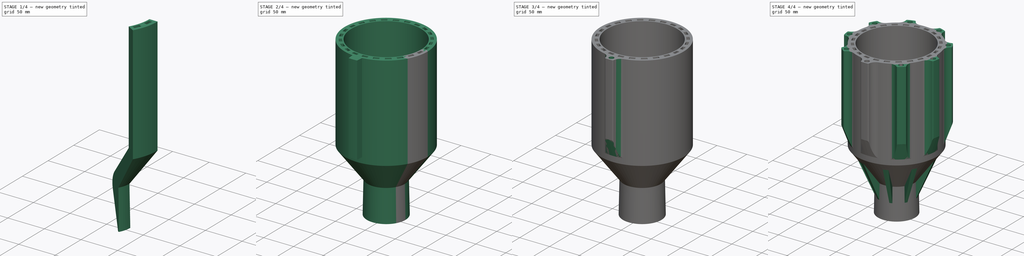
[diagram: build sequence overview — one tinted view per stage of 4, left to right]
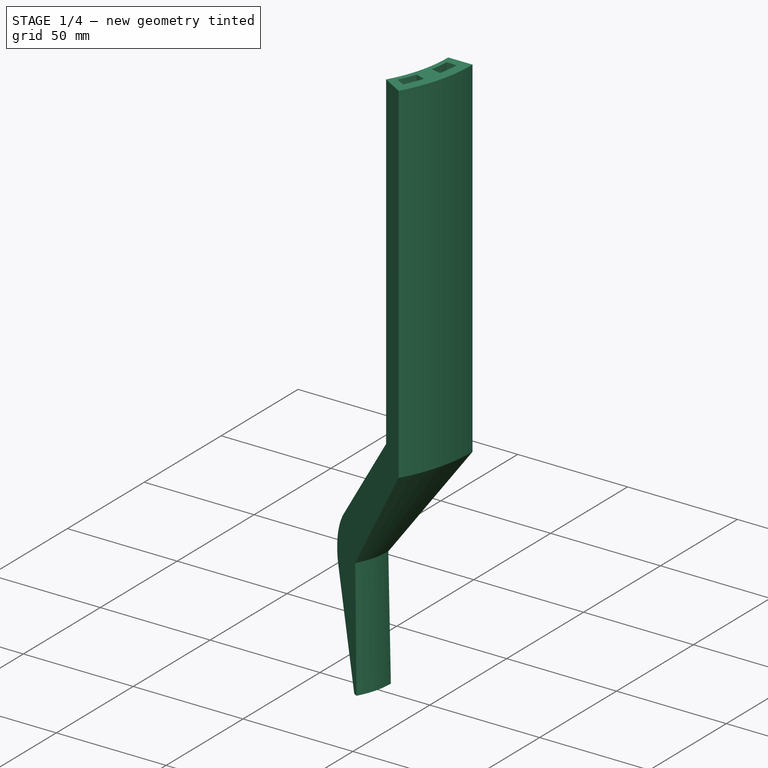
[diagram: stage 1 of 4 — iso view after this stage's code; geometry added in this stage tinted green]
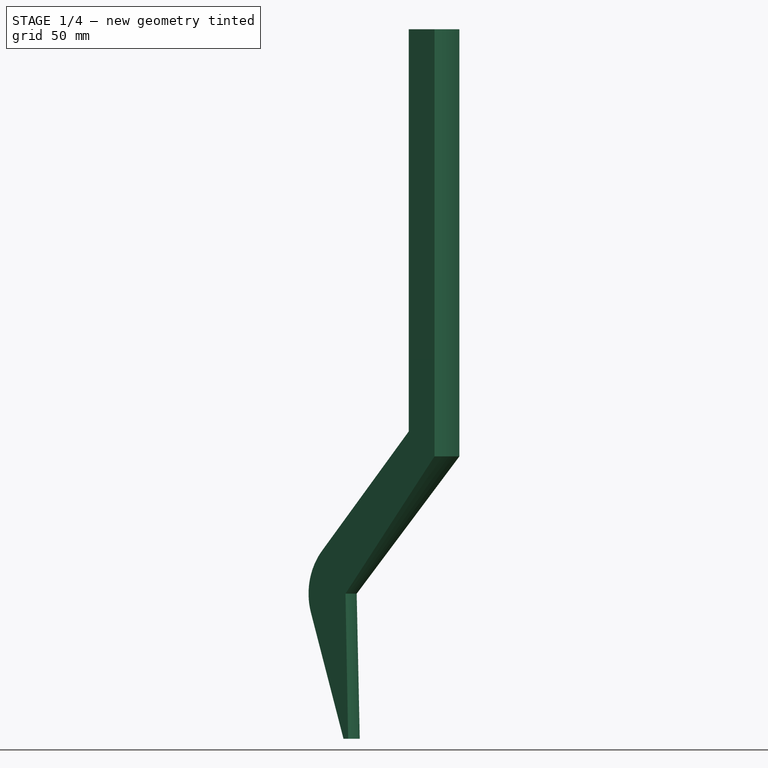
[diagram: stage 1 of 4 — front view after this stage's code; geometry added in this stage tinted green]
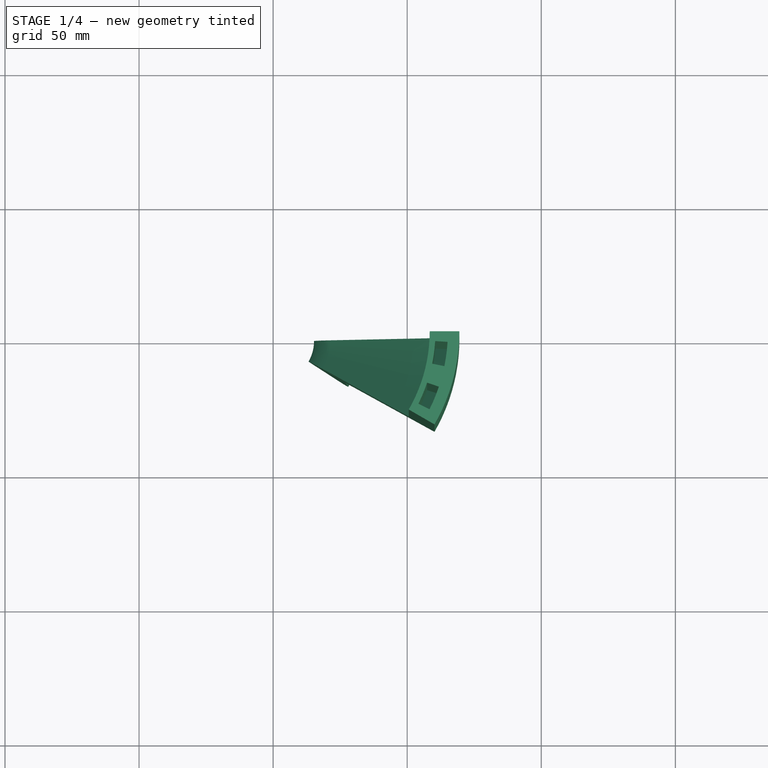
[diagram: stage 1 of 4 — top view after this stage's code; geometry added in this stage tinted green]
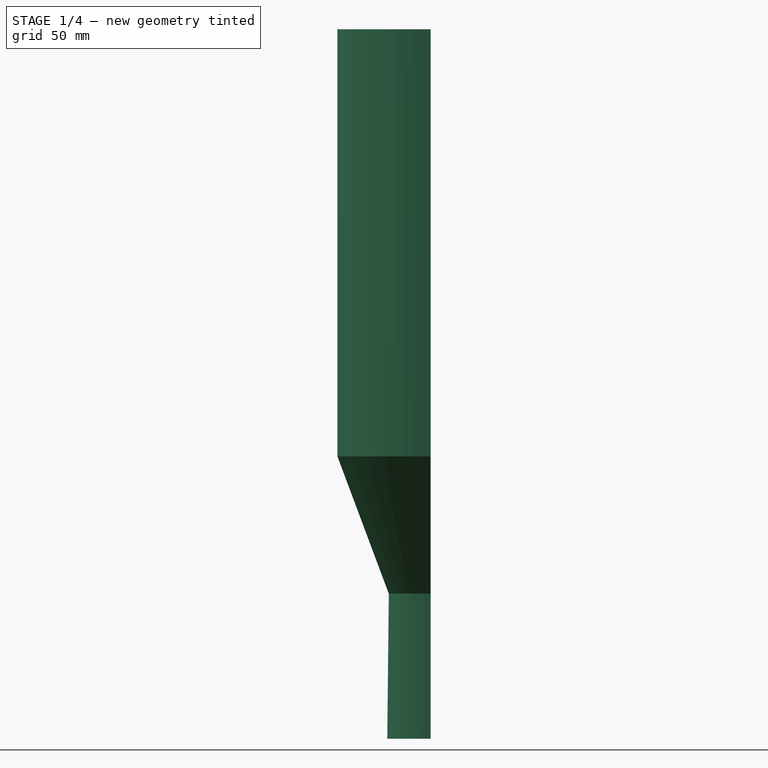
[diagram: stage 1 of 4 — right view after this stage's code; geometry added in this stage tinted green]
FCSTD DOCUMENT  (FreeCAD 1.0R39109 (Git))
Label: mlaznica3DPrint
License: All rights reserved
LicenseURL: https://en.wikipedia.org/wiki/All_rights_reserved
objects: Sketcher::SketchObject×8, PartDesign::Groove×4, PartDesign::PolarPattern×3, PartDesign::Revolution×2, PartDesign::Plane×2, PartDesign::Fillet×2, Spreadsheet::Sheet×1, PartDesign::Pad×1, PartDesign::Pocket×1, PartDesign::Body×1
note: 55 computed .brp shape members not serialized (recipe doc carries the construction recipe); baked Part::Feature solids carry a one-line shape summary decoded from their .brp

FEATURE [Sketcher::SketchObject] Sketch
  ArcFitTolerance = 1e-06
  AttachmentSupport = -> [XZ_Plane]
  FullyConstrained = true
  MakeInternals = false
  MapMode = 5
  Placement = pos=(0,0,0) rot=(1,0,0;1.5708rad)
  expr: Constraints[18] = Spreadsheet.vanjski_promjer
  expr: Constraints[1] = Spreadsheet.promjer_grla_mlaznice
  expr: Constraints[22] = Spreadsheet.vanjski_promjer_grlo
  expr: Constraints[6] = Spreadsheet.unutarnji_promjer_komora
  sketch-geometry (10):
    g0: ArcOfCircle CenterX=40.2564 CenterY=54.12 CenterZ=0 NormalX=0 NormalY=0 NormalZ=1 AngleXU=0 Radius=25 StartAngle=2.44346 EndAngle=3.43132
    g1: LineSegment StartX=16.2983 StartY=46.9778 StartZ=0 EndX=30.303 EndY=0 EndZ=0
    g2: LineSegment StartX=21.1053 StartY=70.1897 StartZ=0 EndX=58.3973 EndY=114.633 EndZ=0
    g3: LineSegment StartX=58.3973 StartY=114.633 StartZ=0 EndX=58.3973 EndY=264.633 EndZ=0
    g4: LineSegment StartX=58.3973 StartY=264.633 StartZ=0 EndX=69.4769 EndY=264.633 EndZ=0
    g5: LineSegment StartX=69.4769 StartY=264.633 StartZ=0 EndX=69.4769 EndY=105.336 EndZ=0
    g6: LineSegment [constr] StartX=58.3973 StartY=114.633 StartZ=0 EndX=69.4769 EndY=105.336 EndZ=0
    g7: LineSegment StartX=69.4769 StartY=105.336 StartZ=0 EndX=31.1546 EndY=54.12 EndZ=0
    g8: LineSegment StartX=31.1546 StartY=54.12 StartZ=0 EndX=32.303 EndY=0 EndZ=0
    g9: LineSegment StartX=32.303 StartY=0 StartZ=0 EndX=30.303 EndY=0 EndZ=0
  constraints (28):
    c: Diameter(g0) = 50
    c: Distance(g0,g-2) = 15.2564
    c: Distance(g0,g-1) = 54.12
    c: Angle(g-2,g1) = 0.289725
    c: PointOnObject(g1,g-1)
    c: Angle(g2,g-2) = 0.698132
    c: DistanceX(g-1,g2) = 58.3973
    c: Tangent(g0,g1) = -1.5708
    c: Tangent(g0,g2) = 1.5708
    c: Coincident(g3,g2)
    c: Vertical(g3)
    c: Coincident(g4,g3)
    c: Horizontal(g4)
    c: Coincident(g5,g4)
    c: Vertical(g5)
    c: DistanceY(g3,g3) = 150
    c: Coincident(g6,g2)
    c: Perpendicular(g6,g2)
    c: Distance(g-2,g5) = 69.4769
    c: Coincident(g5,g6)
    c: Coincident(g7,g5)
    c: Distance(g7,g-1) = 54.12
    c: DistanceX(g-1,g7) = 31.1546
    c: Coincident(g8,g7)
    c: PointOnObject(g8,g-1)
    c: Coincident(g9,g8)
    c: Coincident(g9,g1)
    c: DistanceX(g9,g9) = 2
FEATURE [Spreadsheet::Sheet] Spreadsheet
  cells = B1='dizajn komore; A2=138.953832376305; B2='vanjski_promjer; C2(vanjski_promjer)==A2 / 2; E2='vijci - M; F2=8; A3=130.353832376305; B3='D_ulaz_mlaznice; C3(D_ulaz_mlaznice)==A3 / 2; E3='debljina za vijkke; F3=2; A4=121.074598613595; B4='d_ulaz_mlaznice; C4(d_ulaz_mlaznice)==A4 / 2; A5=116.794598613595; B5='unutarnji promjer; C5(unutarnji_promjer_komora)==A5 / 2; E6=264.63; B7='dizajn grla; A9=30.5127424610271; B9='unutarnji_promjer_grla_mlaznice; C9(promjer_grla_mlaznice)==A9 / 2; A10=32.9127424610271; B10='unutarnja_stjenka_rashladnih_kanala; C10(unutarnja_stjenka_rashladnih_kanala)==A10 / 2; A11=58.449224135592; B11='d_vani_grlo; C11(d_vani_grlo)==A11 / 2; A12=62.309224135592; B12='vanjski_promjer_grlo; C12(vanjski_promjer_grlo)==A12 / 2; B14='revolve mlaznica (stupnjevi); C14(deg_grlo)=30; B15='revolve zid; C15(fi_alu_stupnjevi_ulaz_mlaznice)=6.96335525135019; B16='revolve izlaz kanal; C16(fi_IPA_ulaz_deg)=8.0366447486498; B17='revolve ulaz kanal; C17(fi_IPA_izlaz_gore_deg)=8.0366447486498; B19='visina za prolaz; C19=4.80561357648115; B21='n- za revolve; C21=12
FEATURE [PartDesign::Revolution] Revolution
  Angle = 30
  Angle2 = 60
  Axis = (0,2e-16,1)
  Base = (0,0,0)
  Placement = pos=(0,0,0) rot=(1,0,0;1.5708rad)
  Profile = -> Sketch
  ReferenceAxis = -> Sketch [V_Axis]
  Refine = true
  Reversed = true
  Suppressed = false
  Type = 0
  expr: Angle = Spreadsheet.deg_grlo
FEATURE [PartDesign::Plane] DatumPlane
  AttachmentOffset = pos=(0,0,0) rot=(0,-1,0;0.060767rad)
  AttachmentSupport = -> [XZ_Plane]
  Length = 63.2344
  MapMode = 5
  Placement = pos=(0,0,0) rot=(0.999078,-0.030365,-0.030365;1.57172rad)
  ResizeMode = 0
  Width = 60.2902
  expr: .AttachmentOffset.Rotation.Pitch = -Spreadsheet.C15 / 2
FEATURE [Sketcher::SketchObject] Sketch001
  ArcFitTolerance = 1e-06
  AttachmentSupport = -> [DatumPlane]
  FullyConstrained = false
  MakeInternals = false
  MapMode = 5
  Placement = pos=(0,0,0) rot=(0.999078,-0.030365,-0.030365;1.57172rad)
  expr: Constraints[16] = Spreadsheet.C11
  expr: Constraints[21] = Spreadsheet.C10
  expr: Constraints[24] = Spreadsheet.unutarnji_promjer_komora
  expr: Constraints[7] = Spreadsheet.C4
  expr: Constraints[8] = Spreadsheet.C3
  expr: Constraints[9] = 50 - 2 * (Spreadsheet.C10 - Spreadsheet.C9)
  sketch-geometry (11):
    g0: LineSegment StartX=65.1769 StartY=333 StartZ=0 EndX=65.1769 EndY=111.423 EndZ=0
    g1: LineSegment StartX=65.1769 StartY=333 StartZ=0 EndX=60.5373 EndY=333 EndZ=0
    g2: LineSegment StartX=60.5373 StartY=333 StartZ=0 EndX=60.5373 EndY=115.316 EndZ=0
    g3: ArcOfCircle CenterX=40.2564 CenterY=54.12 CenterZ=0 NormalX=0 NormalY=0 NormalZ=1 AngleXU=0 Radius=23.8 StartAngle=2.44346 EndAngle=3.14159
    g4: LineSegment StartX=65.1769 StartY=111.423 StartZ=0 EndX=29.2246 EndY=54.12 EndZ=0
    g5: LineSegment StartX=60.5373 StartY=115.316 StartZ=0 EndX=22.0245 EndY=69.4183 EndZ=0
    g6: LineSegment [constr] StartX=60.5373 StartY=115.316 StartZ=0 EndX=65.1769 EndY=111.423 EndZ=0
    g7: LineSegment StartX=29.2246 StartY=54.12 StartZ=0 EndX=16.4564 EndY=54.12 EndZ=0
    g8: LineSegment [constr] StartX=58.3973 StartY=277.62 StartZ=0 EndX=58.3973 EndY=117.112 EndZ=0
    g9: LineSegment [constr] StartX=58.3973 StartY=117.112 StartZ=0 EndX=43.5003 EndY=99.3582 EndZ=0
    g10: LineSegment [constr] StartX=58.3973 StartY=117.112 StartZ=0 EndX=85.026 EndY=94.7676 EndZ=0
  constraints (32):
    c: Vertical(g0)
    c: Coincident(g1,g0)
    c: Horizontal(g1)
    c: Coincident(g2,g1)
    c: Vertical(g2)
    c: Coincident(g4,g0)
    c: Coincident(g5,g2)
    c: Distance(g-2,g2) = 60.5373
    c: Distance(g-2,g0) = 65.1769
    c: Diameter(g3) = 47.6
    c: Distance(g3,g-1) = 54.12
    c: DistanceY(g-1,g4) = 54.12
    c: Coincident(g6,g2)
    c: Perpendicular(g5,g6)
    c: PointOnObject(g0,g6)
    c: PointOnObject(g6,g4)
    c: DistanceX(g-1,g4) = 29.2246
    c: Coincident(g7,g4)
    c: Horizontal(g7)
    c: Tangent(g3,g5) = -1.5708
    c: Coincident(g3,g7)
    c: Distance(g3,g-2) = 16.4564
    c: Vertical(g8)
    c: DistanceY(g-1,g8) = 277.62
    c: Distance(g-2,g8) = 58.3973
    c: Coincident(g9,g8)
    c: Angle(g9,g-2) = 0.698132
    c: Coincident(g10,g8)
    c: Perpendicular(g9,g10)
    c: PointOnObject(g2,g10)
    c: Distance(g-1,g1) = 333
    c: PointOnObject(g6,g10)
FEATURE [PartDesign::Groove] Groove
  Angle = 8.03664
  Angle2 = 60
  Axis = (0,2e-16,1)
  Base = (0,0,0)
  BaseFeature = -> Revolution
  Placement = pos=(0,0,0) rot=(1,0,0;1.5708rad)
  Profile = -> Sketch001
  ReferenceAxis = -> Sketch001 [V_Axis]
  Refine = true
  Reversed = true
  Suppressed = false
  Type = 0
  expr: Angle = Spreadsheet.C16
FEATURE [PartDesign::Plane] DatumPlane001
  AttachmentOffset = pos=(0,0,0) rot=(0,-1,0;0.322566rad)
  AttachmentSupport = -> [XZ_Plane]
  Length = 74.5204
  MapMode = 5
  Placement = pos=(0,0,0) rot=(0.974537,-0.158553,-0.158553;1.59659rad)
  ResizeMode = 0
  Width = 61.2491
  expr: .AttachmentOffset.Rotation.Pitch = -(Spreadsheet.C15 + Spreadsheet.C15 / 2 + Spreadsheet.C16)
FEATURE [Sketcher::SketchObject] Sketch002
  ArcFitTolerance = 1e-06
  AttachmentSupport = -> [DatumPlane001]
  FullyConstrained = false
  MakeInternals = false
  MapMode = 5
  Placement = pos=(0,0,0) rot=(0.974537,-0.158553,-0.158553;1.59659rad)
  expr: Constraints[12] = 50 - 2 * (Spreadsheet.C10 - Spreadsheet.C9)
  expr: Constraints[13] = Spreadsheet.C11
  expr: Constraints[14] = Spreadsheet.C4
  expr: Constraints[15] = Spreadsheet.C3
  expr: Constraints[20] = Spreadsheet.C10
  expr: Constraints[22] = Spreadsheet.C5
  expr: Constraints[31] = Spreadsheet.C9
  sketch-geometry (14):
    g0: ArcOfCircle CenterX=40.2564 CenterY=54.12 CenterZ=0 NormalX=0 NormalY=0 NormalZ=1 AngleXU=0 Radius=23.8 StartAngle=2.44346 EndAngle=3.14159
    g1: LineSegment StartX=22.0245 StartY=69.4183 StartZ=0 EndX=60.5373 EndY=115.316 EndZ=0
    g2: LineSegment StartX=60.5373 StartY=115.316 StartZ=0 EndX=60.5373 EndY=333 EndZ=0
    g3: LineSegment StartX=60.5373 StartY=333 StartZ=0 EndX=65.1769 EndY=333 EndZ=0
    g4: LineSegment StartX=65.1769 StartY=333 StartZ=0 EndX=65.1769 EndY=111.423 EndZ=0
    g5: LineSegment StartX=65.1769 StartY=111.423 StartZ=0 EndX=29.2246 EndY=54.12 EndZ=0
    g6: LineSegment [constr] StartX=60.5373 StartY=115.316 StartZ=0 EndX=65.1769 EndY=111.423 EndZ=0
    g7: LineSegment StartX=29.2246 StartY=54.12 StartZ=0 EndX=16.4564 EndY=54.12 EndZ=0
    g8: LineSegment [constr] StartX=58.3973 StartY=277.62 StartZ=0 EndX=58.3973 EndY=117.112 EndZ=0
    g9: LineSegment [constr] StartX=58.3973 StartY=117.112 StartZ=0 EndX=48.7515 EndY=105.616 EndZ=0
    g10: LineSegment [constr] StartX=58.3973 StartY=117.112 StartZ=0 EndX=86.4716 EndY=93.5546 EndZ=0
    g11: ArcOfCircle [constr] CenterX=40.2564 CenterY=54.12 CenterZ=0 NormalX=0 NormalY=0 NormalZ=1 AngleXU=0 Radius=25 StartAngle=2.44346 EndAngle=8.41555
    g12: LineSegment [constr] StartX=22.0245 StartY=69.4183 StartZ=0 EndX=21.1053 EndY=70.1897 EndZ=0
    g13: LineSegment [constr] StartX=16.4564 StartY=54.12 StartZ=0 EndX=15.2564 EndY=54.12 EndZ=0
  constraints (41):
    c: Coincident(g2,g1)
    c: Vertical(g2)
    c: Coincident(g3,g2)
    c: Horizontal(g3)
    c: Coincident(g4,g3)
    c: Vertical(g4)
    c: Coincident(g5,g4)
    c: Coincident(g6,g1)
    c: Perpendicular(g1,g6)
    c: Coincident(g6,g4)
    c: DistanceY(g-1,g0) = 54.12
    c: DistanceY(g-1,g5) = 54.12
    c: Diameter(g0) = 47.6
    c: DistanceX(g-1,g5) = 29.2246
    c: Distance(g-2,g2) = 60.5373
    c: Distance(g-2,g4) = 65.1769
    c: Coincident(g7,g5)
    c: Horizontal(g7)
    c: Coincident(g0,g7)
    c: Tangent(g0,g1) = 1.5708
    c: Distance(g0,g-2) = 16.4564
    c: Vertical(g8)
    c: Distance(g-2,g8) = 58.3973
    c: DistanceY(g-1,g8) = 277.62
    c: Distance(g-1,g3) = 333
    c: Coincident(g9,g8)
    c: Angle(g9,g-2) = 0.698132
    c: Coincident(g10,g8)
    c: Perpendicular(g10,g9)
    c: PointOnObject(g1,g10)
    c: DistanceY(g-1,g11) = 54.12
    c: Distance(g11,g-2) = 15.2564
    c: Diameter(g11) = 50
    c: Coincident(g12,g0)
    c: Perpendicular(g12,g1)
    c: PointOnObject(g11,g1)
    c: Coincident(g12,g11)
    c: Coincident(g13,g0)
    c: Horizontal(g13)
    c: PointOnObject(g13,g11)
    c: PointOnObject(g4,g10)
FEATURE [PartDesign::Groove] Groove001
  Angle = 8.03664
  Angle2 = 60
  Axis = (0,-2e-16,1)
  Base = (0,0,0)
  BaseFeature = -> Groove
  Placement = pos=(0,0,0) rot=(1,0,0;1.5708rad)
  Profile = -> Sketch002
  ReferenceAxis = -> Sketch002 [V_Axis]
  Refine = true
  Reversed = true
  Suppressed = false
  Type = 0
  expr: Angle = Spreadsheet.C17
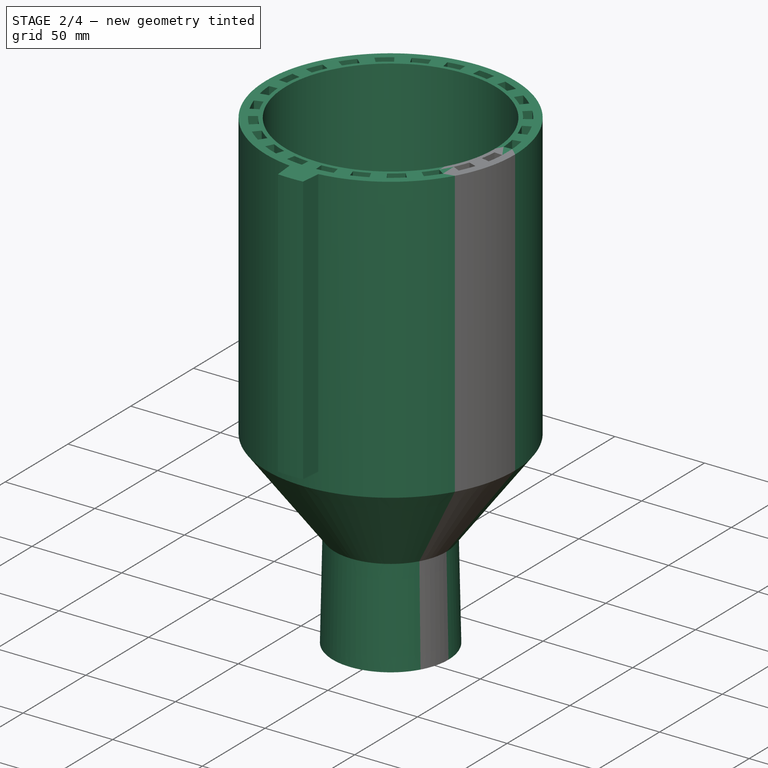
[diagram: stage 2 of 4 — iso view after this stage's code; geometry added in this stage tinted green]
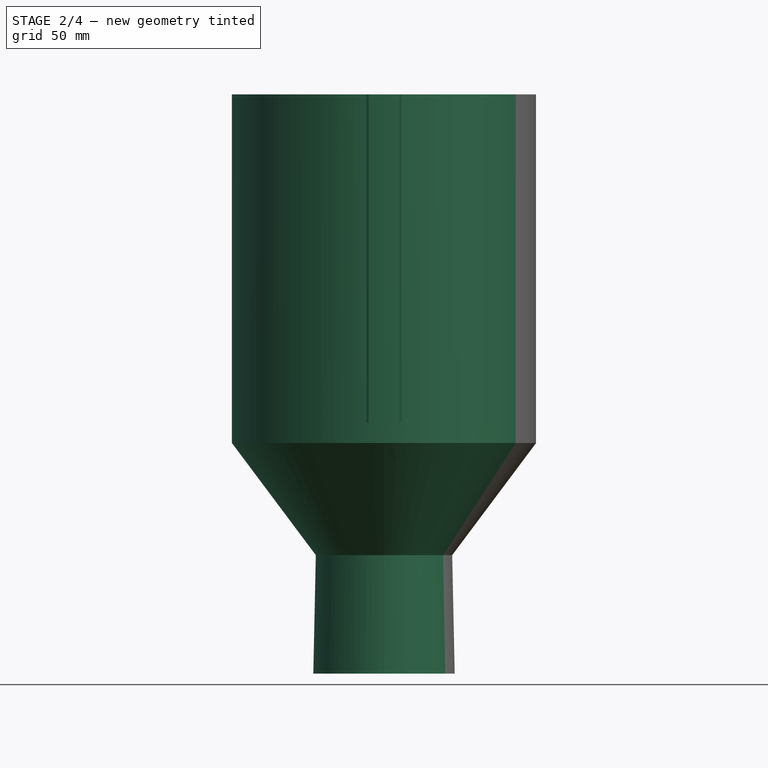
[diagram: stage 2 of 4 — front view after this stage's code; geometry added in this stage tinted green]
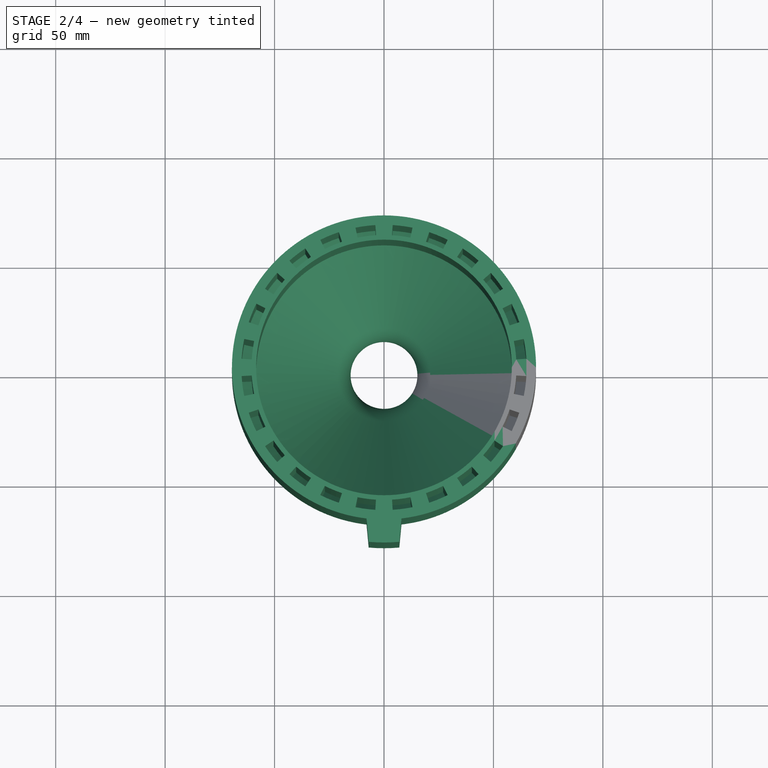
[diagram: stage 2 of 4 — top view after this stage's code; geometry added in this stage tinted green]
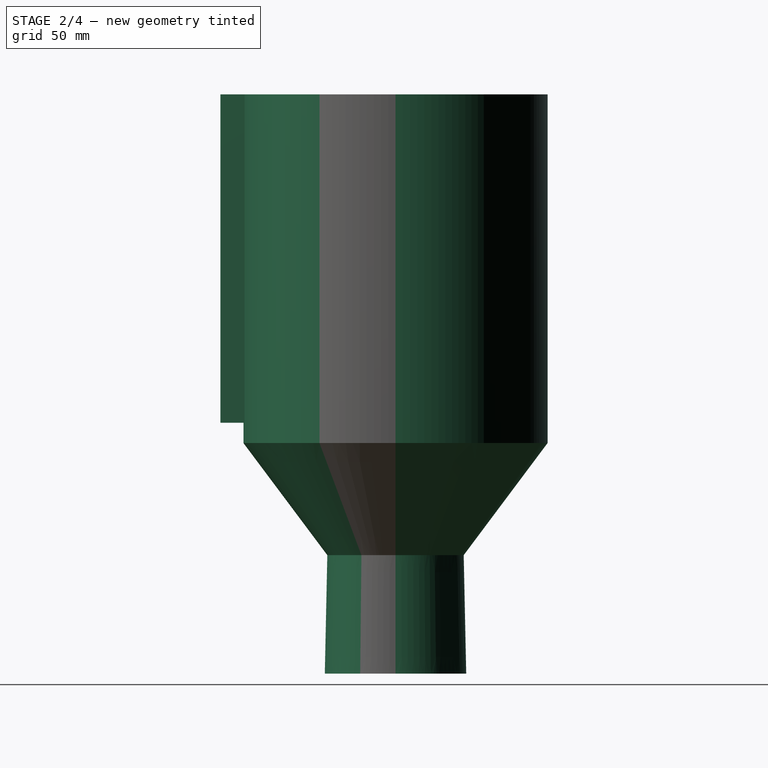
[diagram: stage 2 of 4 — right view after this stage's code; geometry added in this stage tinted green]
FEATURE [Sketcher::SketchObject] Sketch004
  ArcFitTolerance = 1e-06
  AttachmentSupport = -> [DatumPlane001]
  FullyConstrained = false
  MakeInternals = false
  MapMode = 5
  Placement = pos=(0,0,0) rot=(0.974537,-0.158553,-0.158553;1.59659rad)
  expr: Constraints[0] = 50 - 2 * (Spreadsheet.C10 - Spreadsheet.C9)
  expr: Constraints[12] = Spreadsheet.C3
  expr: Constraints[13] = Spreadsheet.C10
  expr: Constraints[21] = Spreadsheet.C3
  expr: Constraints[22] = Spreadsheet.C4
  expr: Constraints[28] = Spreadsheet.C19
  expr: Constraints[3] = Spreadsheet.C11
  expr: Constraints[9] = Spreadsheet.C5
  sketch-geometry (9):
    g0: ArcOfCircle CenterX=40.2564 CenterY=54.12 CenterZ=0 NormalX=0 NormalY=0 NormalZ=1 AngleXU=0 Radius=23.8 StartAngle=2.93828 EndAngle=3.14159
    g1: LineSegment StartX=29.2246 StartY=54.12 StartZ=0 EndX=31.7725 EndY=58.9256 EndZ=0
    g2: LineSegment [constr] StartX=58.3973 StartY=277.62 StartZ=0 EndX=58.3973 EndY=127.62 EndZ=0
    g3: LineSegment [constr] StartX=58.3973 StartY=127.62 StartZ=0 EndX=40.0586 EndY=105.765 EndZ=0
    g4: LineSegment [constr] StartX=58.3973 StartY=127.62 StartZ=0 EndX=65.1769 EndY=121.931 EndZ=0
    g5: LineSegment StartX=29.2246 StartY=54.12 StartZ=0 EndX=16.4564 EndY=54.12 EndZ=0
    g6: LineSegment [constr] StartX=15.2647 StartY=59.7526 StartZ=0 EndX=60.5373 EndY=125.824 EndZ=0
    g7: LineSegment [constr] StartX=65.1769 StartY=121.931 StartZ=0 EndX=29.2246 EndY=54.12 EndZ=0
    g8: LineSegment StartX=16.9466 StartY=58.9256 StartZ=0 EndX=31.7725 EndY=58.9256 EndZ=0
  constraints (29):
    c: Diameter(g0) = 47.6
    c: DistanceY(g-1,g0) = 54.12
    c: DistanceY(g-1,g1) = 54.12
    c: Distance(g1,g-2) = 29.2246
    c: Vertical(g2)
    c: Coincident(g3,g2)
    c: DistanceY(g-1,g2) = 277.62
    c: DistanceY(g2,g2) = 150
    c: Angle(g3,g-2) = 0.698132
    c: Distance(g-2,g2) = 58.3973
    c: Coincident(g4,g2)
    c: Perpendicular(g3,g4)
    c: Distance(g4,g-2) = 65.1769
    c: Distance(g0,g-2) = 16.4564
    c: Coincident(g5,g1)
    c: Coincident(g5,g0)
    c: Horizontal(g5)
    c: Distance(g3,g3) = 28.53
    c: PointOnObject(g6,g4)
    c: PointOnObject(g7,g4)
    c: Coincident(g7,g1)
    c: DistanceX(g-1,g7) = 65.1769
    c: DistanceX(g-1,g6) = 60.5373
    c: Tangent(g0,g6)
    c: Parallel(g7,g1)
    c: Horizontal(g8)
    c: Coincident(g8,g1)
    c: Coincident(g8,g0)
    c: Distance(g5,g8) = 4.80561
FEATURE [PartDesign::Groove] Groove002
  Angle = 6.96336
  Angle2 = 60
  Axis = (0,-2e-16,1)
  Base = (0,0,0)
  BaseFeature = -> Groove001
  Placement = pos=(0,0,0) rot=(1,0,0;1.5708rad)
  Profile = -> Sketch004
  ReferenceAxis = -> Sketch004 [V_Axis]
  Refine = true
  Suppressed = false
  Type = 0
  expr: Angle = Spreadsheet.C15
FEATURE [PartDesign::PolarPattern] PolarPattern
  Angle = 360
  Axis = -> Z_Axis
  BaseFeature = -> Groove002
  Mode = 0
  Occurrences = 12
  Offset = 120
  Placement = pos=(0,0,0) rot=(1,0,0;1.5708rad)
  Refine = true
  Suppressed = false
  TransformMode = 1
  expr: Occurrences = Spreadsheet.C21
FEATURE [Sketcher::SketchObject] Sketch005
  ArcFitTolerance = 1e-06
  AttachmentSupport = -> [PolarPattern]
  FullyConstrained = true
  MakeInternals = false
  MapMode = 5
  Placement = pos=(0,-5.88e-14,264.633) rot=(0,0,1;3.14159rad)
  expr: Constraints[2] = Spreadsheet.F2
  expr: Constraints[4] = Spreadsheet.C2 + Spreadsheet.F2 / 2 + Spreadsheet.F3
  expr: Constraints[6] = Spreadsheet.A2
  sketch-geometry (5):
    g0: ArcOfCircle CenterX=0 CenterY=0 CenterZ=0 NormalX=0 NormalY=0 NormalZ=1 AngleXU=0 Radius=80 StartAngle=1.48318 EndAngle=1.65841
    g1: Circle [constr] CenterX=0 CenterY=75.4769 CenterZ=0 NormalX=0 NormalY=0 NormalZ=1 AngleXU=0 Radius=4
    g2: ArcOfCircle CenterX=0 CenterY=0 CenterZ=0 NormalX=0 NormalY=0 NormalZ=1 AngleXU=0 Radius=69.4769 StartAngle=1.45539 EndAngle=1.6862
    g3: LineSegment StartX=-8 StartY=69.0148 StartZ=0 EndX=-7 EndY=79.6932 EndZ=0
    g4: LineSegment StartX=8 StartY=69.0148 StartZ=0 EndX=7 EndY=79.6932 EndZ=0
  constraints (15):
    c: Diameter(g0) = 160
    c: Coincident(g0,g-1)
    c: Diameter(g1) = 8
    c: PointOnObject(g1,g-2)
    c: DistanceY(g-1,g1) = 75.4769
    c: Coincident(g2,g0)
    c: Diameter(g2) = 138.954
    c: Coincident(g3,g2)
    c: Coincident(g4,g2)
    c: Coincident(g0,g3)
    c: Coincident(g0,g4)
    c: Distance(g0,g-2) = 7
    c: Distance(g0,g-2) = 7
    c: DistanceX(g2,g-1) = 8
    c: Distance(g2,g-2) = 8
FEATURE [PartDesign::Pad] Pad
  BaseFeature = -> PolarPattern
  Direction = (0,0,1)
  Length = 150
  Length2 = 10
  Placement = pos=(0,0,0) rot=(1,0,0;1.5708rad)
  Profile = -> Sketch005
  ReferenceAxis = -> Sketch005 [N_Axis]
  Refine = true
  Reversed = true
  Suppressed = false
  Type = 0
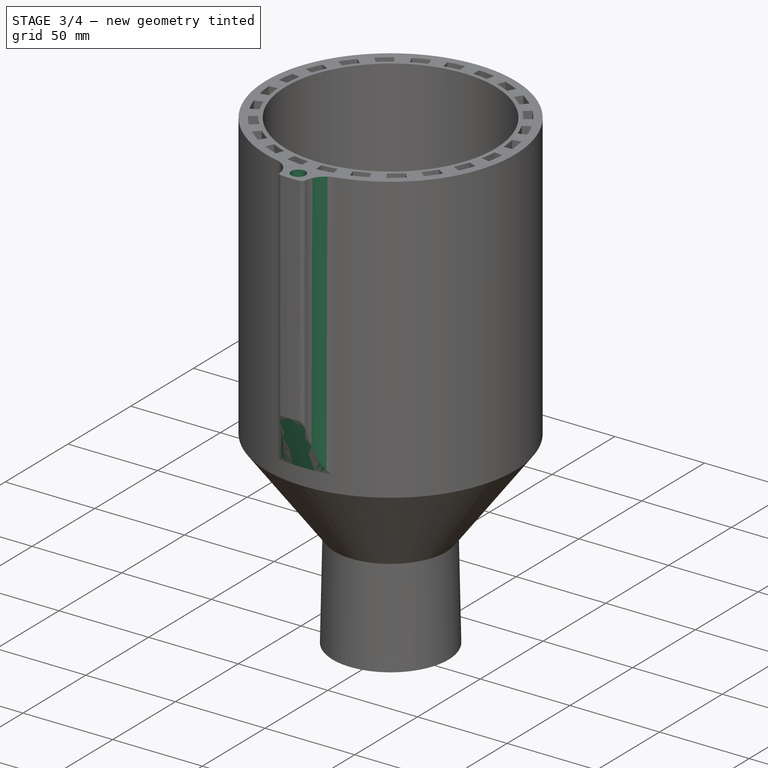
[diagram: stage 3 of 4 — iso view after this stage's code; geometry added in this stage tinted green]
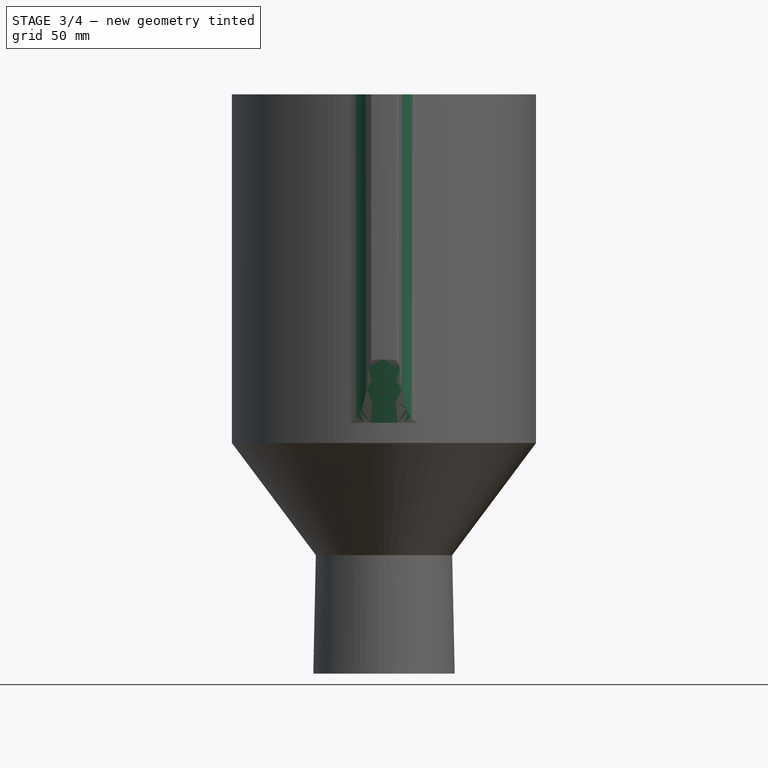
[diagram: stage 3 of 4 — front view after this stage's code; geometry added in this stage tinted green]
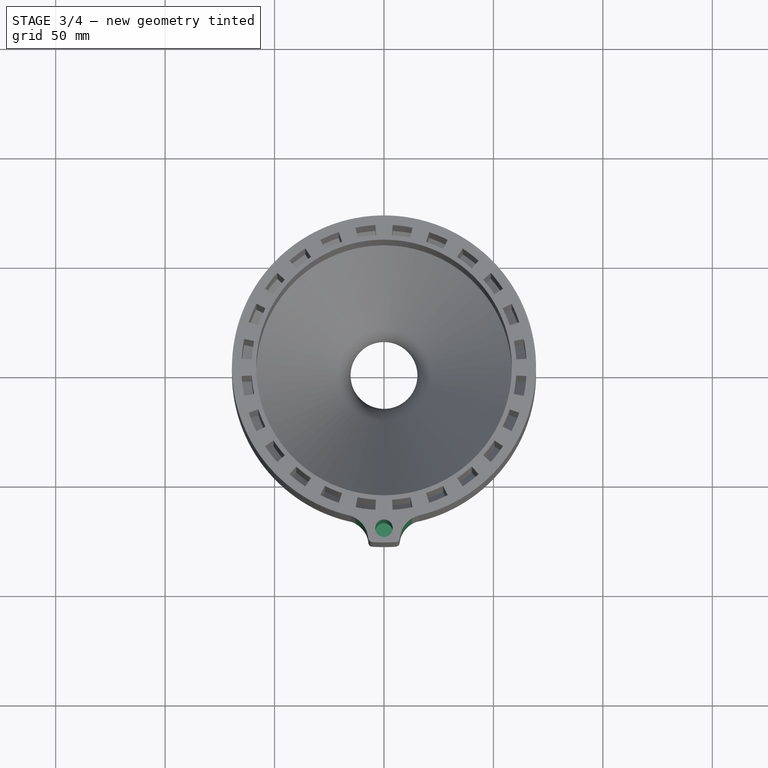
[diagram: stage 3 of 4 — top view after this stage's code; geometry added in this stage tinted green]
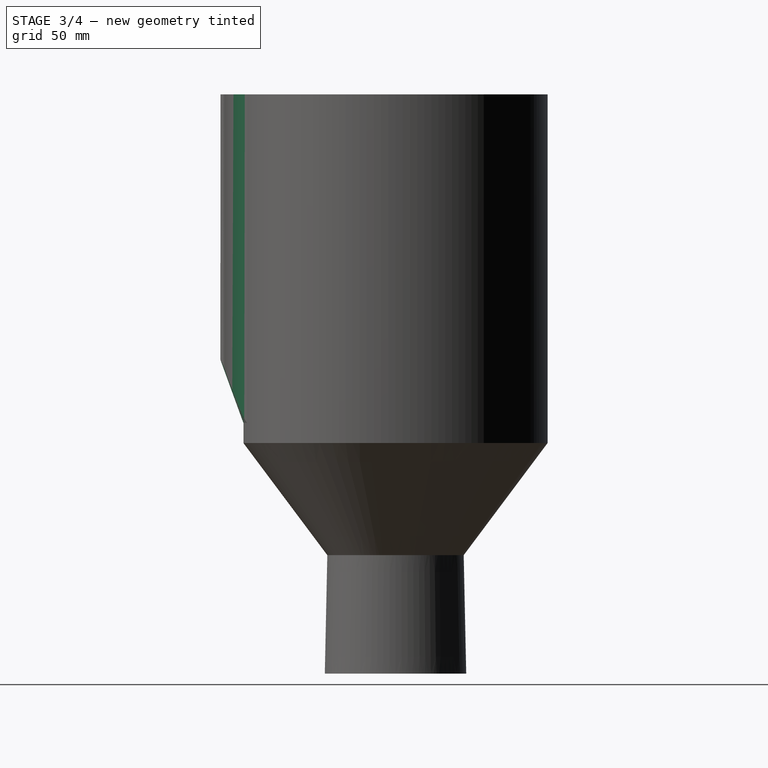
[diagram: stage 3 of 4 — right view after this stage's code; geometry added in this stage tinted green]
FEATURE [PartDesign::Fillet] Fillet
  Base = -> Pad [Edge58,Edge56]
  BaseFeature = -> Pad
  Placement = pos=(0,0,0) rot=(1,0,0;1.5708rad)
  Radius = 12
  Refine = true
  SupportTransform = false
  Suppressed = false
  UseAllEdges = false
  expr: Radius = Spreadsheet.F2 * 2 - Spreadsheet.F2 / 2
FEATURE [Sketcher::SketchObject] Sketch006
  ArcFitTolerance = 1e-06
  AttachmentSupport = -> [Fillet]
  FullyConstrained = true
  MakeInternals = false
  MapMode = 5
  Placement = pos=(0,-1.691e-13,264.633) rot=(0,0,1;3.14159rad)
  expr: Constraints[0] = Spreadsheet.F2
  expr: Constraints[2] = Spreadsheet.C2 + Spreadsheet.F2 / 2
  sketch-geometry (1):
    g0: Circle CenterX=0 CenterY=73.4769 CenterZ=0 NormalX=0 NormalY=0 NormalZ=1 AngleXU=0 Radius=4
  constraints (3):
    c: Diameter(g0) = 8
    c: PointOnObject(g0,g-2)
    c: DistanceY(g-1,g0) = 73.4769
FEATURE [PartDesign::Pocket] Pocket
  BaseFeature = -> Fillet
  Direction = (0,0,-1)
  Length = 100
  Length2 = 5
  Placement = pos=(0,0,0) rot=(1,0,0;1.5708rad)
  Profile = -> Sketch006
  ReferenceAxis = -> Sketch006 [N_Axis]
  Refine = true
  Suppressed = false
  Type = 0
FEATURE [PartDesign::Fillet] Fillet001
  Base = -> Pocket [Edge177,Edge176]
  BaseFeature = -> Pocket
  Placement = pos=(0,0,0) rot=(1,0,0;1.5708rad)
  Radius = 2
  Refine = true
  SupportTransform = false
  Suppressed = false
  UseAllEdges = false
  expr: Radius = Spreadsheet.F3
FEATURE [Sketcher::SketchObject] Sketch007
  ArcFitTolerance = 1e-06
  AttachmentSupport = -> [YZ_Plane]
  FullyConstrained = false
  MakeInternals = false
  MapMode = 5
  Placement = pos=(0,0,0) rot=(0.57735,0.57735,0.57735;2.0944rad)
  expr: Constraints[5] = Spreadsheet.C2
  sketch-geometry (3):
    g0: LineSegment StartX=-92.0603 StartY=176.538 StartZ=0 EndX=-69.4769 EndY=114.491 EndZ=0
    g1: LineSegment StartX=-69.4769 StartY=114.491 StartZ=0 EndX=-92.0603 EndY=114.491 EndZ=0
    g2: LineSegment StartX=-92.0603 StartY=176.538 StartZ=0 EndX=-92.0603 EndY=114.491 EndZ=0
  constraints (7):
    c: Coincident(g1,g0)
    c: Horizontal(g1)
    c: Coincident(g2,g0)
    c: Vertical(g2)
    c: Coincident(g1,g2)
    c: DistanceX(g0,g-1) = 69.4769
    c: Angle(g0,g1) = 1.22173
FEATURE [PartDesign::Groove] Groove003
  Angle = 360
  Angle2 = 60
  Axis = (0,0,1)
  Base = (0,0,0)
  BaseFeature = -> Fillet001
  Placement = pos=(0,0,0) rot=(1,0,0;1.5708rad)
  Profile = -> Sketch007
  ReferenceAxis = -> Sketch007 [V_Axis]
  Refine = true
  Reversed = true
  Suppressed = false
  Type = 0
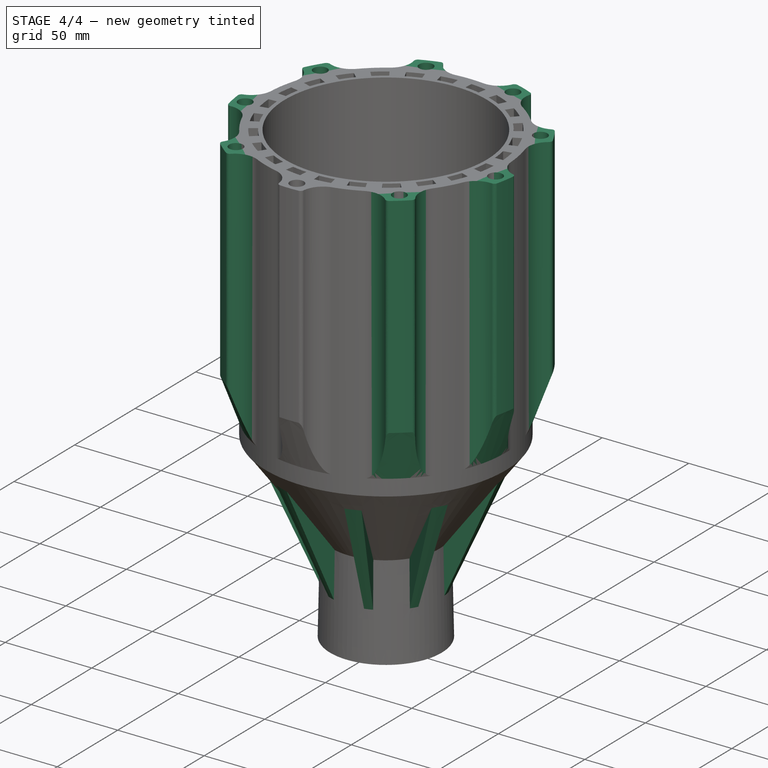
[diagram: stage 4 of 4 — iso view after this stage's code; geometry added in this stage tinted green]
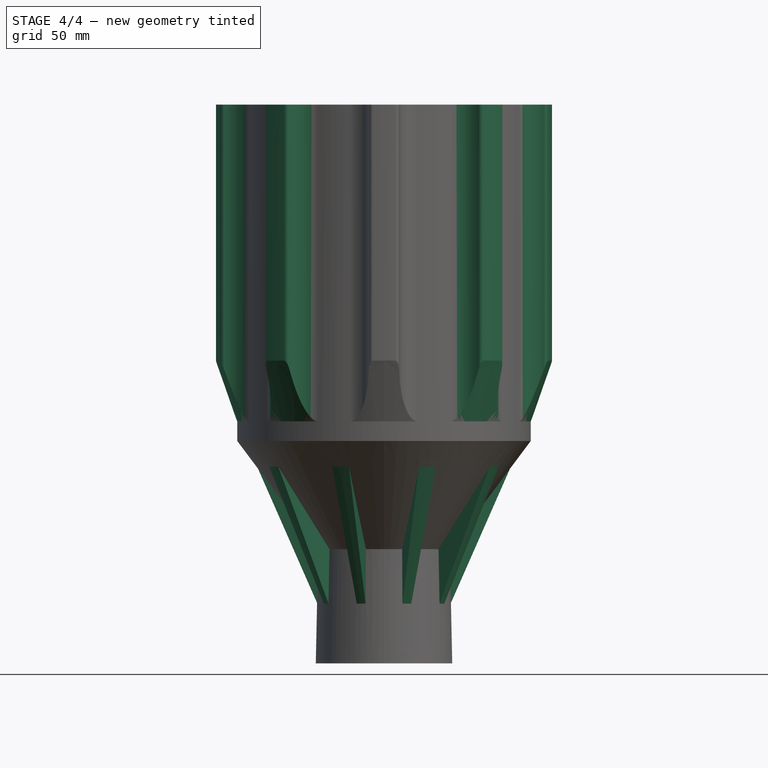
[diagram: stage 4 of 4 — front view after this stage's code; geometry added in this stage tinted green]
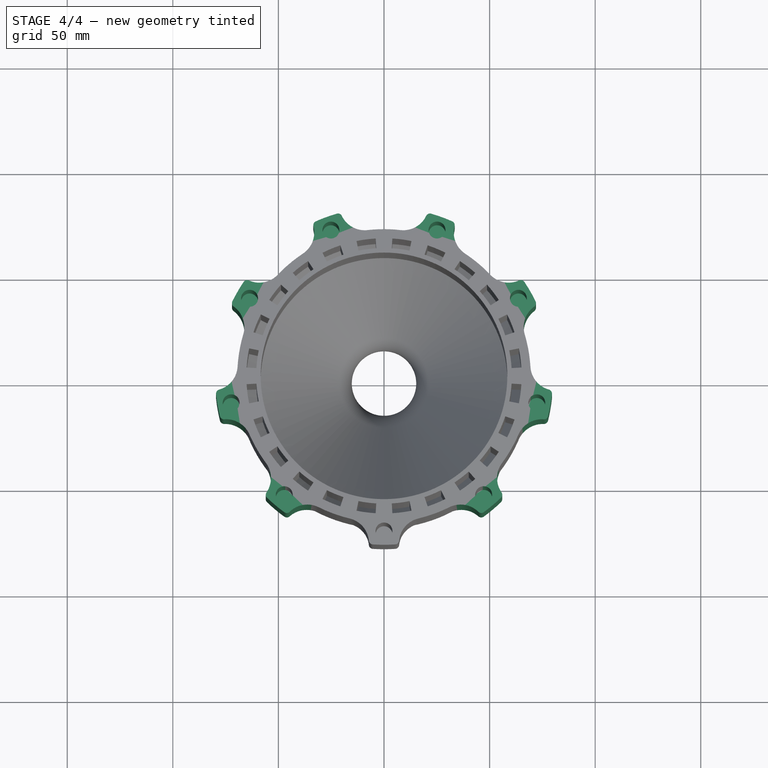
[diagram: stage 4 of 4 — top view after this stage's code; geometry added in this stage tinted green]
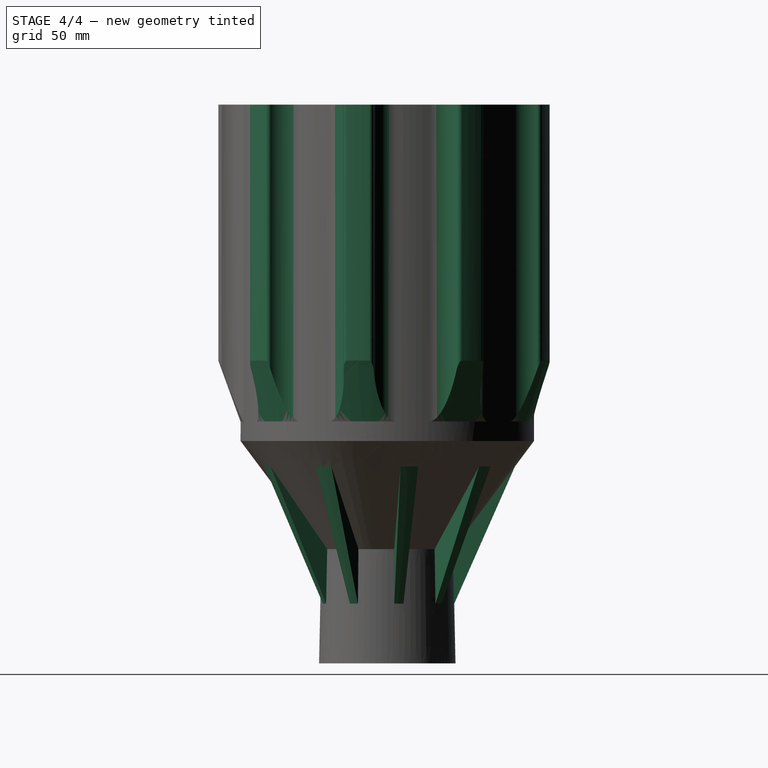
[diagram: stage 4 of 4 — right view after this stage's code; geometry added in this stage tinted green]
FEATURE [PartDesign::PolarPattern] PolarPattern001
  Angle = 360
  Axis = -> Sketch005 [N_Axis]
  BaseFeature = -> Groove003
  Mode = 0
  Occurrences = 9
  Offset = 120
  Originals = -> [Pad,Fillet,Pocket,Fillet001,Groove003]
  Placement = pos=(0,0,0) rot=(1,0,0;1.5708rad)
  Refine = true
  Suppressed = false
  TransformMode = 0
FEATURE [Sketcher::SketchObject] Sketch008
  ArcFitTolerance = 1e-06
  AttachmentSupport = -> [YZ_Plane]
  FullyConstrained = false
  MakeInternals = false
  MapMode = 5
  Placement = pos=(0,0,0) rot=(0.57735,0.57735,0.57735;2.0944rad)
  expr: Constraints[4] = Spreadsheet.C12
  expr: Constraints[6] = Spreadsheet.C2 * 7 / 8
  expr: Constraints[7] = 54.12 / 2
  sketch-geometry (3):
    g0: LineSegment StartX=31.1546 StartY=54.12 StartZ=0 EndX=60.7923 EndY=94.0544 EndZ=0
    g1: LineSegment StartX=60.7923 StartY=94.0544 StartZ=0 EndX=31.1546 EndY=27.06 EndZ=0
    g2: LineSegment StartX=31.1546 StartY=54.12 StartZ=0 EndX=31.1546 EndY=27.06 EndZ=0
  constraints (8):
    c: Coincident(g1,g0)
    c: Coincident(g2,g0)
    c: Coincident(g2,g1)
    c: Vertical(g2)
    c: Distance(g-2,g2) = 31.1546
    c: DistanceY(g-1,g0) = 54.12
    c: DistanceX(g-1,g0) = 60.7923
    c: DistanceY(g-1,g1) = 27.06
FEATURE [PartDesign::Revolution] Revolution001
  Angle = 8
  Angle2 = 60
  Axis = (0,0,1)
  Base = (0,0,0)
  BaseFeature = -> PolarPattern001
  Midplane = true
  Placement = pos=(0,0,0) rot=(1,0,0;1.5708rad)
  Profile = -> Sketch008
  ReferenceAxis = -> Sketch008 [V_Axis]
  Refine = true
  Suppressed = false
  Type = 0
FEATURE [PartDesign::PolarPattern] PolarPattern002
  Angle = 360
  Axis = -> Z_Axis
  BaseFeature = -> Revolution001
  Mode = 0
  Occurrences = 9
  Offset = 120
  Originals = -> [Revolution001]
  Placement = pos=(0,0,0) rot=(1,0,0;1.5708rad)
  Refine = true
  Suppressed = false
  TransformMode = 0
FEATURE [PartDesign::Body] Body  label="volume-solid"
  AllowCompound = false
  Group = -> [Sketch,Revolution,DatumPlane,Sketch001,Groove,DatumPlane001,Sketch002,Groove001,Sketch004,Groove002,PolarPattern,Sketch005,Pad,Fillet,Sketch006,Pocket,Fillet001,Sketch007,Groove003,PolarPattern001,Sketch008,Revolution001,PolarPattern002]
  Origin = -> Origin
  Tip = -> PolarPattern002
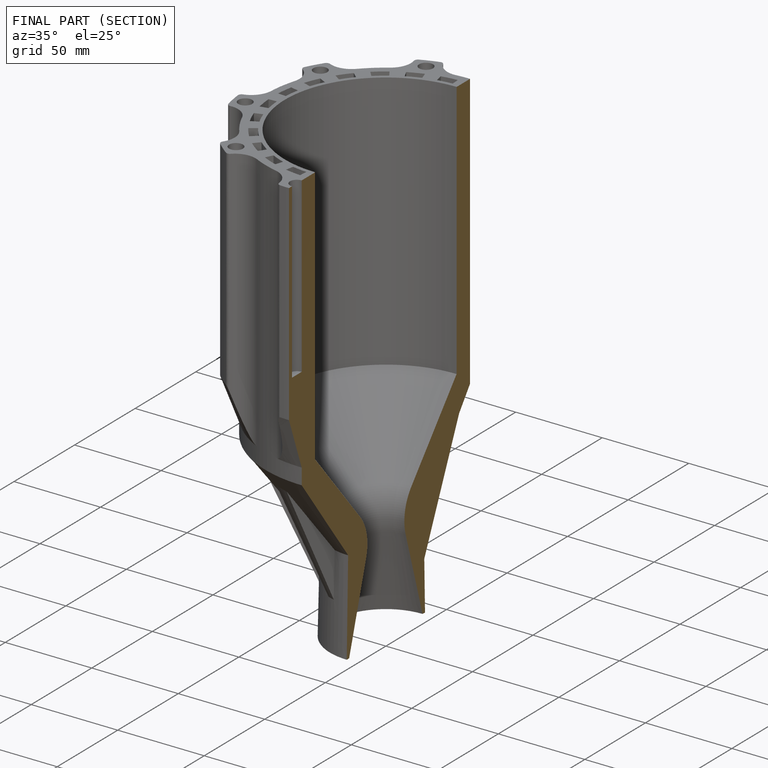
[diagram: finished part — half-section view (interior)]
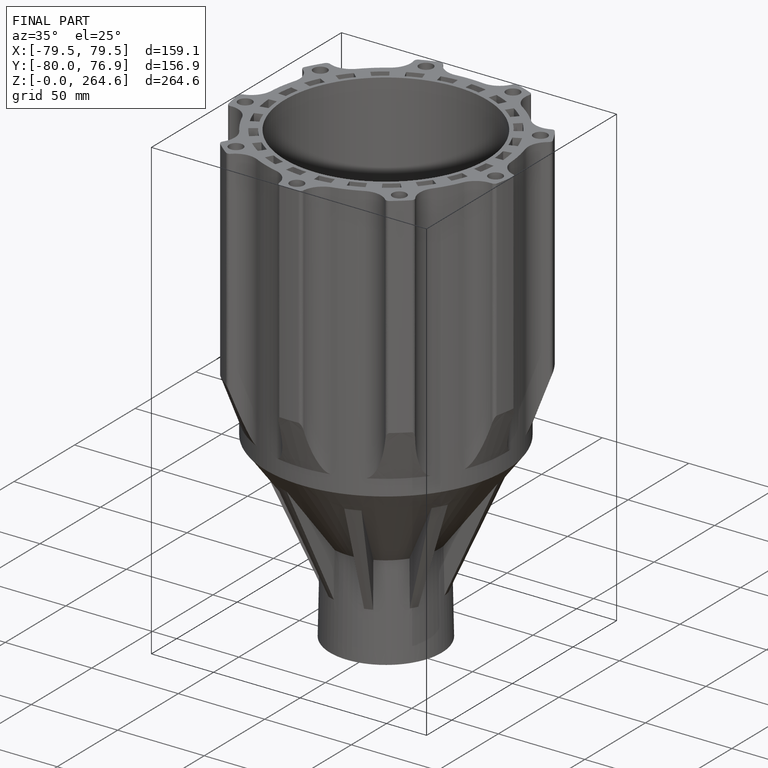
[diagram: finished part — iso view with bounding-box wireframe]
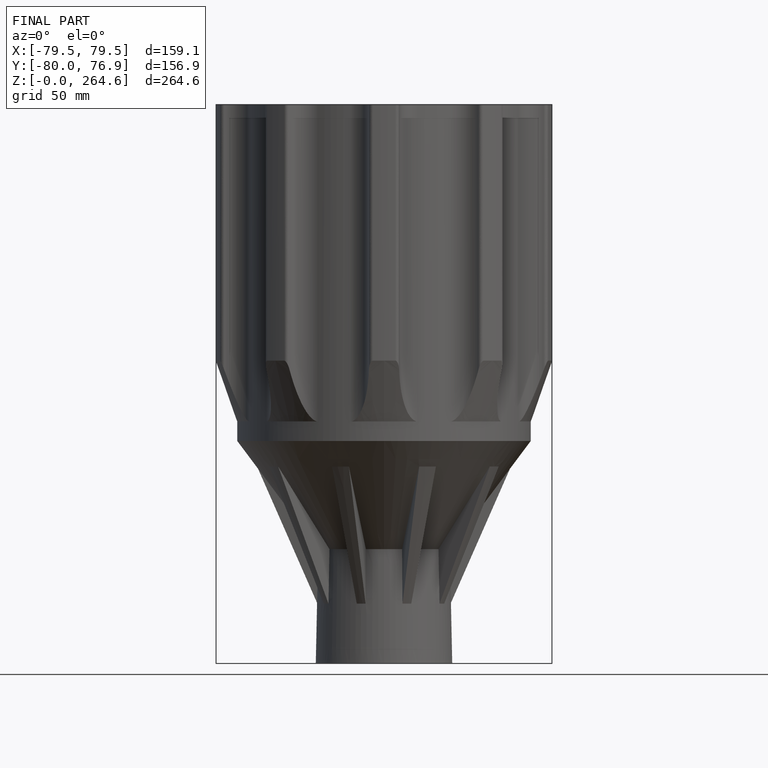
[diagram: finished part — front view with bounding-box wireframe]
